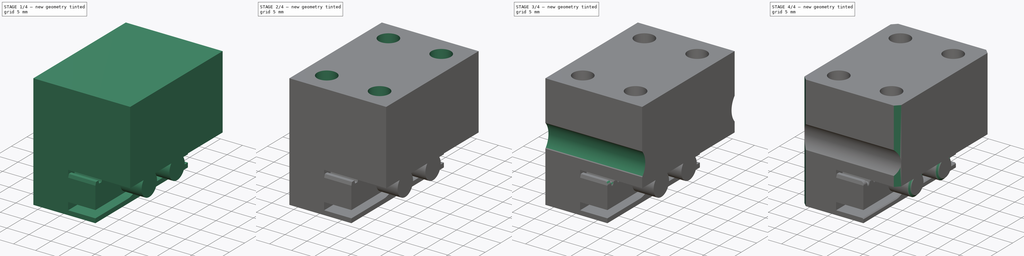
[diagram: build sequence overview — one tinted view per stage of 4, left to right]
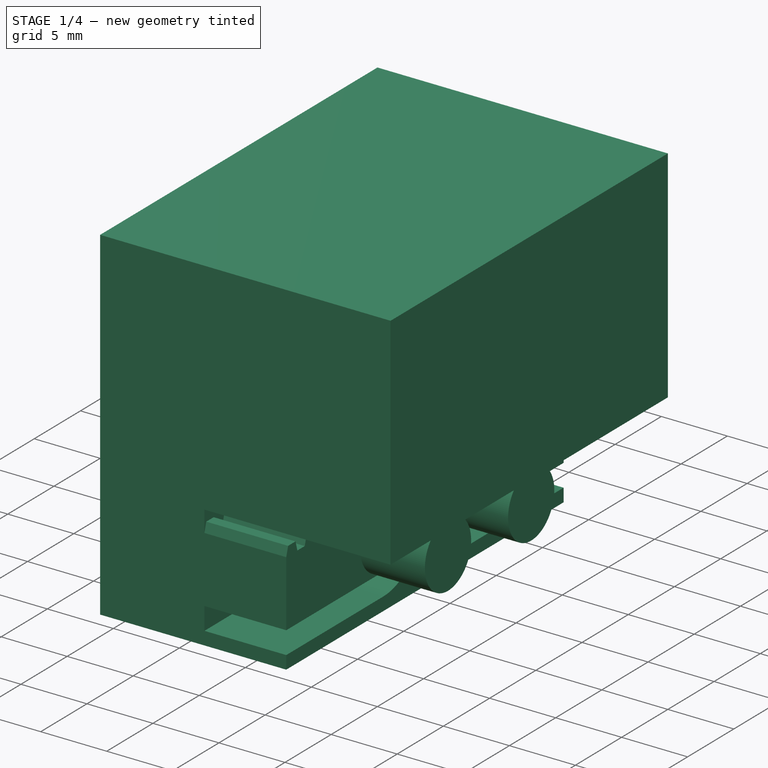
[diagram: stage 1 of 4 — iso view after this stage's code; geometry added in this stage tinted green]
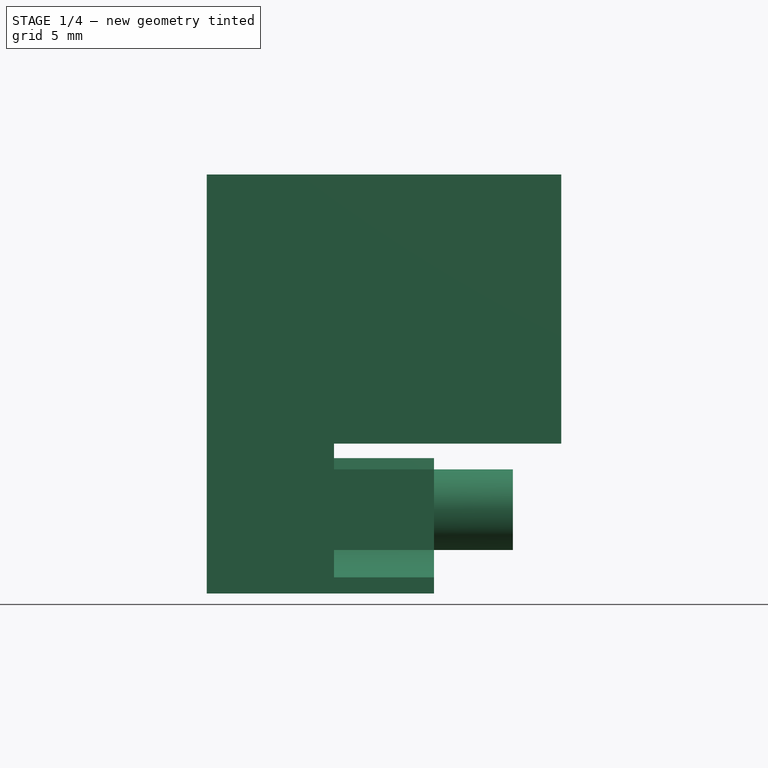
[diagram: stage 1 of 4 — front view after this stage's code; geometry added in this stage tinted green]
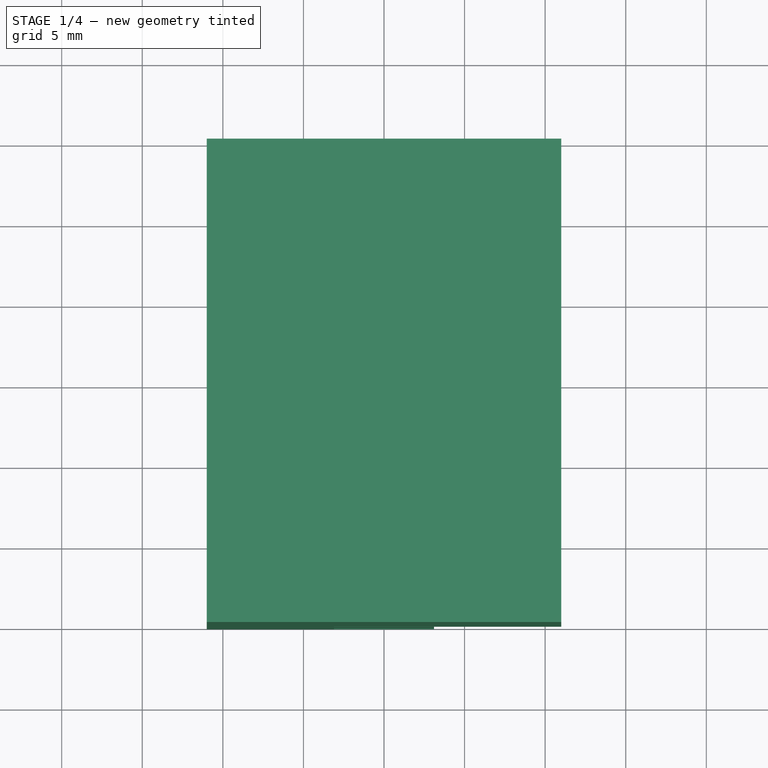
[diagram: stage 1 of 4 — top view after this stage's code; geometry added in this stage tinted green]
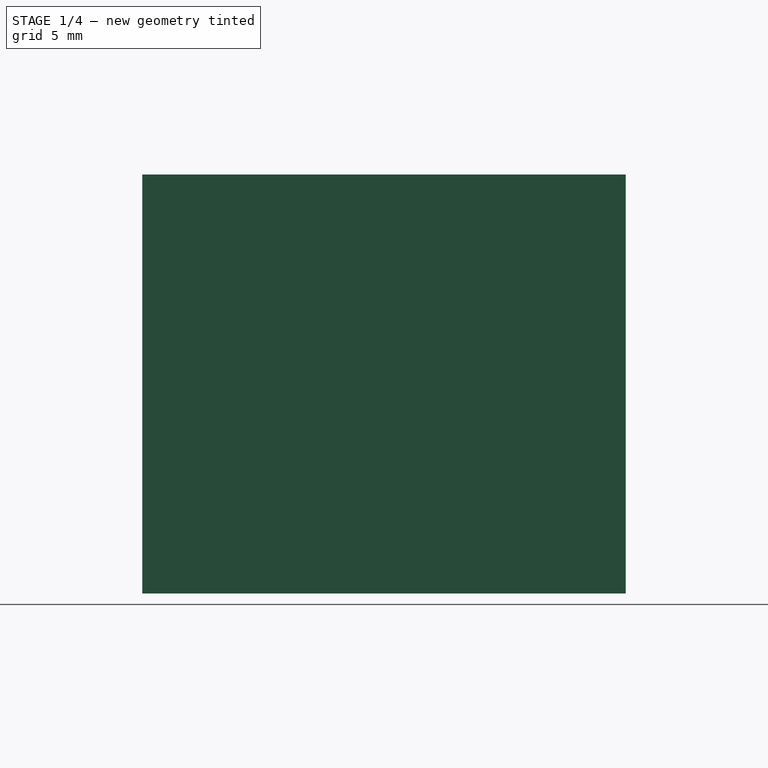
[diagram: stage 1 of 4 — right view after this stage's code; geometry added in this stage tinted green]
FCSTD DOCUMENT  (FreeCAD 0.19R24276 (Git))
Label: _Y_Belt-Clamp17mm
License: CreativeCommons Attribution-NonCommercial-ShareAlike
LicenseURL: http://creativecommons.org/licenses/by-nc-sa/4.0/
objects: Sketcher::SketchObject×7, PartDesign::Pocket×5, PartDesign::Chamfer×3, PartDesign::Pad×2, PartDesign::Fillet×1, PartDesign::Body×1
note: 30 computed .brp shape members not serialized (recipe doc carries the construction recipe); baked Part::Feature solids carry a one-line shape summary decoded from their .brp

FEATURE [Sketcher::SketchObject] Sketch
  FullyConstrained = false
  MapMode = 5
  Placement = pos=(0,0,0) rot=(1,0,0;1.5708rad)
  Support = -> [XZ_Plane]
  sketch-geometry (7):
    g0: LineSegment StartX=-11 StartY=20.8 StartZ=0 EndX=11 EndY=20.8 EndZ=0
    g1: LineSegment StartX=11 StartY=20.8 StartZ=0 EndX=11 EndY=4.1 EndZ=0
    g2: LineSegment StartX=11 StartY=4.1 StartZ=0 EndX=3.1 EndY=4.1 EndZ=0
    g3: LineSegment StartX=3.1 StartY=4.1 StartZ=0 EndX=3.1 EndY=-5.2 EndZ=0
    g4: LineSegment StartX=3.1 StartY=-5.2 StartZ=0 EndX=-11 EndY=-5.2 EndZ=0
    g5: LineSegment StartX=-11 StartY=-5.2 StartZ=0 EndX=-11 EndY=20.8 EndZ=0
    g6: LineSegment StartX=3.1 StartY=4.1 StartZ=0 EndX=-3.1 EndY=4.1 EndZ=0
  constraints (19):
    c: Coincident(g0,g1)
    c: Vertical(g1)
    c: Coincident(g1,g2)
    c: Horizontal(g2)
    c: Coincident(g2,g3)
    c: Coincident(g3,g4)
    c: Horizontal(g4)
    c: Coincident(g4,g5)
    c: Coincident(g5,g0)
    c: Vertical(g5)
    c: Vertical(g3)
    c: Symmetric(g0,g0,g-2)
    c: DistanceX(g0,g0) = 22
    c: Coincident(g6,g2)
    c: Symmetric(g2,g6,g-2)
    c: DistanceX(g6,g6) = 6.2
    c: DistanceY(g3,g-1) = 5.2  'under_hight'
    c: DistanceY(g-1,g0) = 20.8  'base_hight'
    c: DistanceY(g-1,g1) = 4.1  'upper_hight'
FEATURE [PartDesign::Pad] Pad  label="BaseBody"
  AllowMultiFace = false
  Direction = (1,1,1)
  Length = 30
  Length2 = 100
  Midplane = true
  Placement = pos=(0,0,0) rot=(1,0,0;1.5708rad)
  Profile = -> Sketch
  Refine = true
  Type = 0
FEATURE [Sketcher::SketchObject] Sketch001
  ExternalGeometry = -> [Pad]
  FullyConstrained = true
  MapMode = 5
  Placement = pos=(0,0,0) rot=(0.57735,0.57735,0.57735;2.0944rad)
  Support = -> [YZ_Plane]
  sketch-geometry (73):
    g0: LineSegment StartX=-15 StartY=4.1 StartZ=0 EndX=15 EndY=4.1 EndZ=0
    g1: LineSegment StartX=15 StartY=4.1 StartZ=0 EndX=15 EndY=2.5 EndZ=0
    g2: LineSegment StartX=15 StartY=2.5 StartZ=0 EndX=14.8 EndY=3.2 EndZ=0
    g3: LineSegment StartX=14.8 StartY=3.2 StartZ=0 EndX=14 EndY=3.2 EndZ=0
    g4: LineSegment StartX=14 StartY=3.2 StartZ=0 EndX=13.8 EndY=2.5 EndZ=0
    g5: LineSegment StartX=13.8 StartY=2.5 StartZ=0 EndX=13 EndY=2.5 EndZ=0
    g6: LineSegment StartX=13 StartY=2.5 StartZ=0 EndX=12.8 EndY=3.2 EndZ=0
    g7: LineSegment StartX=12.8 StartY=3.2 StartZ=0 EndX=12 EndY=3.2 EndZ=0
    g8: LineSegment StartX=12 StartY=3.2 StartZ=0 EndX=11.8 EndY=2.5 EndZ=0
    g9: LineSegment StartX=11.8 StartY=2.5 StartZ=0 EndX=11 EndY=2.5 EndZ=0
    g10: LineSegment StartX=11 StartY=2.5 StartZ=0 EndX=10.8 EndY=3.2 EndZ=0
    g11: LineSegment StartX=10.8 StartY=3.2 StartZ=0 EndX=10 EndY=3.2 EndZ=0
    g12: LineSegment StartX=10 StartY=3.2 StartZ=0 EndX=9.8 EndY=2.5 EndZ=0
    g13: LineSegment StartX=9.8 StartY=2.5 StartZ=0 EndX=9 EndY=2.5 EndZ=0
    g14: LineSegment StartX=9 StartY=2.5 StartZ=0 EndX=8.8 EndY=3.2 EndZ=0
    g15: LineSegment StartX=8.8 StartY=3.2 StartZ=0 EndX=8 EndY=3.2 EndZ=0
    g16: LineSegment StartX=8 StartY=3.2 StartZ=0 EndX=7.8 EndY=2.5 EndZ=0
    g17: LineSegment StartX=7.8 StartY=2.5 StartZ=0 EndX=7 EndY=2.5 EndZ=0
    g18: LineSegment StartX=7 StartY=2.5 StartZ=0 EndX=6.8 EndY=3.2 EndZ=0
    g19: LineSegment StartX=6.8 StartY=3.2 StartZ=0 EndX=6 EndY=3.2 EndZ=0
    g20: LineSegment StartX=6 StartY=3.2 StartZ=0 EndX=5.8 EndY=2.5 EndZ=0
    g21: LineSegment StartX=5.8 StartY=2.5 StartZ=0 EndX=4.5 EndY=2.5 EndZ=0
    g22: LineSegment StartX=5.8 StartY=2.5 StartZ=0 EndX=7 EndY=2.5 EndZ=0
    g23: LineSegment StartX=6.8 StartY=3.2 StartZ=0 EndX=8 EndY=3.2 EndZ=0
    g24: LineSegment StartX=8.8 StartY=3.2 StartZ=0 EndX=10 EndY=3.2 EndZ=0
    g25: LineSegment StartX=9 StartY=2.5 StartZ=0 EndX=7.8 EndY=2.5 EndZ=0
    g26: LineSegment StartX=9.8 StartY=2.5 StartZ=0 EndX=11 EndY=2.5 EndZ=0
    g27: LineSegment StartX=10.8 StartY=3.2 StartZ=0 EndX=12 EndY=3.2 EndZ=0
    g28: LineSegment StartX=11.8 StartY=2.5 StartZ=0 EndX=13 EndY=2.5 EndZ=0
    g29: LineSegment StartX=12.8 StartY=3.2 StartZ=0 EndX=14 EndY=3.2 EndZ=0
    g30: LineSegment StartX=13.8 StartY=2.5 StartZ=0 EndX=15 EndY=2.5 EndZ=0
    g31: LineSegment StartX=-15 StartY=4.1 StartZ=0 EndX=-15 EndY=2.5 EndZ=0
    g32: LineSegment StartX=-15 StartY=2.5 StartZ=0 EndX=-14.8 EndY=3.2 EndZ=0
    g33: LineSegment StartX=-14.8 StartY=3.2 StartZ=0 EndX=-14 EndY=3.2 EndZ=0
    g34: LineSegment StartX=-14 StartY=3.2 StartZ=0 EndX=-13.8 EndY=2.5 EndZ=0
    g35: LineSegment StartX=-13.8 StartY=2.5 StartZ=0 EndX=-13 EndY=2.5 EndZ=0
    g36: LineSegment StartX=-13 StartY=2.5 StartZ=0 EndX=-12.8 EndY=3.2 EndZ=0
    g37: LineSegment StartX=-12.8 StartY=3.2 StartZ=0 EndX=-12 EndY=3.2 EndZ=0
    g38: LineSegment StartX=-12 StartY=3.2 StartZ=0 EndX=-11.8 EndY=2.5 EndZ=0
    g39: LineSegment StartX=-11.8 StartY=2.5 StartZ=0 EndX=-11 EndY=2.5 EndZ=0
    g40: LineSegment StartX=-11 StartY=2.5 StartZ=0 EndX=-10.8 EndY=3.2 EndZ=0
    g41: LineSegment StartX=-10.8 StartY=3.2 StartZ=0 EndX=-10 EndY=3.2 EndZ=0
    g42: LineSegment StartX=-10 StartY=3.2 StartZ=0 EndX=-9.8 EndY=2.5 EndZ=0
    g43: LineSegment StartX=-9.8 StartY=2.5 StartZ=0 EndX=-9 EndY=2.5 EndZ=0
    g44: LineSegment StartX=-9 StartY=2.5 StartZ=0 EndX=-8.8 EndY=3.2 EndZ=0
    g45: LineSegment StartX=-8.8 StartY=3.2 StartZ=0 EndX=-8 EndY=3.2 EndZ=0
    g46: LineSegment StartX=-8 StartY=3.2 StartZ=0 EndX=-7.8 EndY=2.5 EndZ=0
    g47: LineSegment StartX=-7.8 StartY=2.5 StartZ=0 EndX=-7 EndY=2.5 EndZ=0
    g48: LineSegment StartX=-7 StartY=2.5 StartZ=0 EndX=-6.8 EndY=3.2 EndZ=0
    g49: LineSegment StartX=-6.8 StartY=3.2 StartZ=0 EndX=-6 EndY=3.2 EndZ=0
    g50: LineSegment StartX=-6 StartY=3.2 StartZ=0 EndX=-5.8 EndY=2.5 EndZ=0
    g51: LineSegment StartX=-5.8 StartY=2.5 StartZ=0 EndX=-4.5 EndY=2.5 EndZ=0
    g52: ArcOfCircle CenterX=-4.5 CenterY=2.8943e-12 CenterZ=0 NormalX=0 NormalY=0 NormalZ=1 AngleXU=0 Radius=2.5 StartAngle=4.71239 EndAngle=7.85398
    g53: ArcOfCircle CenterX=4.5 CenterY=2.8943e-12 CenterZ=0 NormalX=0 NormalY=0 NormalZ=1 AngleXU=0 Radius=2.5 StartAngle=1.5708 EndAngle=4.71239
    g54: LineSegment StartX=4.5 StartY=-2.5 StartZ=0 EndX=15 EndY=-2.5 EndZ=0
    g55: LineSegment StartX=15 StartY=-2.5 StartZ=0 EndX=15 EndY=-4.2 EndZ=0
    g56: LineSegment StartX=-15 StartY=-4.2 StartZ=0 EndX=-15 EndY=-2.5 EndZ=0
    g57: LineSegment StartX=-15 StartY=-2.5 StartZ=0 EndX=-4.5 EndY=-2.5 EndZ=0
    g58: LineSegment StartX=-15 StartY=2.5 StartZ=0 EndX=-13.8 EndY=2.5 EndZ=0
    g59: LineSegment StartX=-14 StartY=3.2 StartZ=0 EndX=-12.8 EndY=3.2 EndZ=0
    g60: LineSegment StartX=-13 StartY=2.5 StartZ=0 EndX=-11.8 EndY=2.5 EndZ=0
    g61: LineSegment StartX=-12 StartY=3.2 StartZ=0 EndX=-10.8 EndY=3.2 EndZ=0
    g62: LineSegment StartX=-10 StartY=3.2 StartZ=0 EndX=-8.8 EndY=3.2 EndZ=0
    g63: LineSegment StartX=-11 StartY=2.5 StartZ=0 EndX=-9.8 EndY=2.5 EndZ=0
    g64: LineSegment StartX=-9 StartY=2.5 StartZ=0 EndX=-7.8 EndY=2.5 EndZ=0
    g65: LineSegment StartX=-8 StartY=3.2 StartZ=0 EndX=-6.8 EndY=3.2 EndZ=0
    g66: LineSegment StartX=-7 StartY=2.5 StartZ=0 EndX=-5.8 EndY=2.5 EndZ=0
    g67: ArcOfCircle CenterX=0 CenterY=2.8943e-12 CenterZ=0 NormalX=0 NormalY=0 NormalZ=1 AngleXU=0 Radius=0.3 StartAngle=9.65e-14 EndAngle=3.14159
    g68: ArcOfCircle CenterX=4.5 CenterY=2.8943e-12 CenterZ=0 NormalX=0 NormalY=0 NormalZ=1 AngleXU=0 Radius=4.2 StartAngle=3.14159 EndAngle=4.71239
    g69: ArcOfCircle CenterX=-4.5 CenterY=2.8943e-12 CenterZ=0 NormalX=0 NormalY=0 NormalZ=1 AngleXU=0 Radius=4.2 StartAngle=4.71239 EndAngle=6.28319
    g70: LineSegment StartX=4.5 StartY=-4.2 StartZ=0 EndX=15 EndY=-4.2 EndZ=0
    g71: LineSegment StartX=-4.5 StartY=-4.2 StartZ=0 EndX=-15 EndY=-4.2 EndZ=0
    g72: LineSegment StartX=-4.5 StartY=2.8943e-12 StartZ=0 EndX=4.5 EndY=2.8943e-12 EndZ=0
  constraints (192):
    c: Coincident(g-5,g0)
    c: Coincident(g0,g-4)
    c: Coincident(g0,g1)
    c: PointOnObject(g1,g-4)
    c: Coincident(g2,g3)
    c: Coincident(g3,g4)
    c: Coincident(g4,g5)
    c: Coincident(g5,g6)
    c: Coincident(g6,g7)
    c: Horizontal(g7)
    c: Coincident(g7,g8)
    c: Coincident(g8,g9)
    c: Coincident(g9,g10)
    c: Coincident(g10,g11)
    c: Coincident(g11,g12)
    c: Coincident(g12,g13)
    c: Coincident(g13,g14)
    c: Coincident(g14,g15)
    c: Coincident(g15,g16)
    c: Coincident(g16,g17)
    c: Coincident(g17,g18)
    c: Coincident(g18,g19)
    c: Horizontal(g19)
    c: Coincident(g19,g20)
    c: Coincident(g20,g21)
    c: Coincident(g22,g20)
    c: Coincident(g22,g17)
    c: Coincident(g23,g18)
    c: Coincident(g23,g15)
    c: Coincident(g24,g14)
    c: Coincident(g24,g11)
    c: Horizontal(g24)
    c: Coincident(g25,g13)
    c: Coincident(g25,g16)
    c: Coincident(g26,g12)
    c: Coincident(g26,g9)
    c: Coincident(g27,g10)
    c: Coincident(g27,g7)
    c: Coincident(g28,g8)
    c: Coincident(g28,g5)
    c: Coincident(g29,g6)
    c: Coincident(g29,g3)
    c: Coincident(g30,g4)
    c: Horizontal(g22)
    c: Horizontal(g23)
    c: Horizontal(g25)
    c: Horizontal(g26)
    c: Horizontal(g27)
    c: Horizontal(g5)
    c: Horizontal(g30)
    c: Horizontal(g21)
    c: Coincident(g0,g31)
    c: PointOnObject(g31,g-5)
    c: Coincident(g32,g33)
    c: Coincident(g33,g34)
    c: Coincident(g34,g35)
    c: Coincident(g35,g36)
    c: Coincident(g36,g37)
    c: Coincident(g37,g38)
    c: Coincident(g38,g39)
    c: Coincident(g39,g40)
    c: Coincident(g40,g41)
    c: Coincident(g41,g42)
    c: Coincident(g42,g43)
    c: Horizontal(g43)
    c: Coincident(g43,g44)
    c: Coincident(g44,g45)
    c: Coincident(g45,g46)
    c: Coincident(g46,g47)
    c: Horizontal(g47)
    c: Coincident(g47,g48)
    c: Coincident(g48,g49)
    c: Coincident(g49,g50)
    c: Coincident(g50,g51)
    c: Tangent(g53,g54) = -1.5708
    c: Coincident(g54,g55)
    c: Vertical(g55)
    c: Vertical(g56)
    c: Coincident(g56,g57)
    c: Coincident(g58,g34)
    c: Horizontal(g58)
    c: Coincident(g59,g33)
    c: Coincident(g59,g36)
    c: Horizontal(g59)
    c: Coincident(g60,g35)
    c: Coincident(g60,g38)
    c: Coincident(g61,g37)
    c: Coincident(g61,g40)
    c: Coincident(g62,g41)
    c: Coincident(g62,g44)
    c: Coincident(g63,g39)
    c: Coincident(g63,g42)
    c: Coincident(g64,g43)
    c: Coincident(g64,g46)
    c: Coincident(g65,g45)
    c: Coincident(g65,g48)
    c: Coincident(g66,g47)
    c: Coincident(g66,g50)
    c: Horizontal(g60)
    c: Horizontal(g61)
    c: Horizontal(g63)
    c: Horizontal(g64)
    c: Horizontal(g65)
    c: Horizontal(g49)
    c: Horizontal(g51)
    c: Equal(g58,g59)
    c: Equal(g59,g60)
    c: Equal(g60,g61)
    c: Equal(g61,g63)
    c: Equal(g63,g62)
    c: Equal(g62,g64)
    c: Equal(g64,g65)
    c: Equal(g65,g66)
    c: Equal(g66,g22)
    c: Equal(g22,g23)
    c: Equal(g23,g25)
    c: Equal(g25,g24)
    c: Equal(g24,g26)
    c: Equal(g26,g27)
    c: Equal(g27,g28)
    c: Equal(g28,g29)
    c: Equal(g29,g30)
    c: Equal(g3,g5)
    c: Equal(g5,g7)
    c: Equal(g7,g9)
    c: Equal(g9,g11)
    c: Equal(g11,g13)
    c: Equal(g13,g15)
    c: Equal(g15,g17)
    c: Equal(g17,g19)
    c: Equal(g19,g49)
    c: Equal(g49,g47)
    c: Equal(g47,g45)
    c: Equal(g45,g43)
    c: Equal(g43,g41)
    c: Equal(g41,g39)
    c: Equal(g39,g37)
    c: Equal(g37,g35)
    c: Equal(g35,g33)
    c: Equal(g32,g34)
    c: Equal(g34,g36)
    c: Equal(g36,g38)
    c: Equal(g38,g40)
    c: Equal(g40,g42)
    c: Equal(g42,g44)
    c: Equal(g44,g46)
    c: Equal(g46,g48)
    c: Equal(g48,g50)
    c: Equal(g50,g20)
    c: Equal(g20,g18)
    c: Equal(g18,g16)
    c: Equal(g16,g14)
    c: Equal(g14,g12)
    c: Equal(g12,g10)
    c: Equal(g10,g8)
    c: Equal(g8,g6)
    c: Equal(g6,g4)
    c: Equal(g4,g2)
    c: DistanceX(g5,g5) = 0.8
    c: Coincident(g2,g30)
    c: DistanceY(g2,g2) = 0.7
    c: DistanceX(g29,g29) = 1.2
    c: Coincident(g2,g1)
    c: Coincident(g32,g31)
    c: Coincident(g58,g31)
    c: Tangent(g53,g21) = -1.5708
    c: Horizontal(g54)
    c: Tangent(g52,g51) = 1.5708
    c: Tangent(g57,g52) = -1.5708
    c: Horizontal(g57)
    c: Equal(g52,g53)
    c: Symmetric(g52,g53,g-2)
    c: DistanceX(g52,g53) = 9
    c: Radius(g53) = 2.5
    c: DistanceY(g1,g1) = 1.6
    c: PointOnObject(g67,g-2)
    c: Tangent(g69,g67) = 1.5708
    c: Tangent(g68,g67) = 1.5708
    c: Coincident(g69,g52)
    c: Coincident(g68,g53)
    c: Coincident(g70,g55)
    c: Coincident(g71,g56)
    c: Tangent(g70,g68) = -1.5708
    c: Tangent(g71,g69) = 1.5708
    c: Horizontal(g70)
    c: PointOnObject(g54,g-4)
    c: PointOnObject(g56,g-5)
    c: Equal(g55,g56)
    c: DistanceY(g55,g55) = 1.7
    c: Coincident(g72,g52)
    c: Coincident(g72,g53)
    c: PointOnObject(g67,g72)
FEATURE [Sketcher::SketchObject] Sketch002
  ExternalGeometry = -> [Sketch001]
  FullyConstrained = true
  MapMode = 5
  Placement = pos=(0,0,0) rot=(0.57735,0.57735,0.57735;2.0944rad)
  Support = -> [YZ_Plane]
  sketch-geometry (2):
    g0: Circle CenterX=-4.5 CenterY=2.8866e-12 CenterZ=0 NormalX=0 NormalY=0 NormalZ=1 AngleXU=0 Radius=2.5
    g1: Circle CenterX=4.5 CenterY=2.8857e-12 CenterZ=0 NormalX=0 NormalY=0 NormalZ=1 AngleXU=0 Radius=2.5
  constraints (4):
    c: Equal(g-4,g1)
    c: Equal(g1,g0)
    c: Coincident(g1,g-4)
    c: Coincident(g0,g-3)
FEATURE [Sketcher::SketchObject] Sketch003
  AttachmentOffset = pos=(0,0,20.8) rot=(0,0,1;0rad)
  FullyConstrained = false
  MapMode = 5
  Placement = pos=(0,0,20.8) rot=(0,0,1;0rad)
  Support = -> [XY_Plane]
  expr: .AttachmentOffset.Base.z = Sketch.Constraints.base_hight
  sketch-geometry (4):
    g0: Circle CenterX=-6 CenterY=10 CenterZ=0 NormalX=0 NormalY=0 NormalZ=1 AngleXU=0 Radius=2.2
    g1: Circle CenterX=6 CenterY=10 CenterZ=0 NormalX=0 NormalY=0 NormalZ=1 AngleXU=0 Radius=2.2
    g2: Circle CenterX=6 CenterY=-10 CenterZ=0 NormalX=0 NormalY=0 NormalZ=1 AngleXU=0 Radius=2.2
    g3: Circle CenterX=-6 CenterY=-10 CenterZ=0 NormalX=0 NormalY=0 NormalZ=1 AngleXU=0 Radius=2.2
  constraints (9):
    c: Symmetric(g3,g2,g-2)
    c: Symmetric(g0,g1,g-2)
    c: Symmetric(g0,g3,g-1)
    c: DistanceX(g0,g1) = 12
    c: DistanceY(g3,g0) = 20
    c: Radius(g0) = 2.2
    c: Equal(g0,g1)
    c: Equal(g0,g3)
    c: Equal(g0,g2)
FEATURE [Sketcher::SketchObject] Sketch004
  AttachmentOffset = pos=(0,0,-5.2) rot=(0,0,1;0rad)
  ExternalGeometry = -> [Sketch003]
  FullyConstrained = false
  MapMode = 5
  Placement = pos=(0,0,-5.2) rot=(0,0,1;0rad)
  Support = -> [XY_Plane]
  expr: .AttachmentOffset.Base.z = -Sketch.Constraints.under_hight
  sketch-geometry (2):
    g0: Circle CenterX=-6 CenterY=10 CenterZ=0 NormalX=0 NormalY=0 NormalZ=1 AngleXU=0 Radius=3.4
    g1: Circle CenterX=-6 CenterY=-10 CenterZ=0 NormalX=0 NormalY=0 NormalZ=1 AngleXU=0 Radius=3.4
  constraints (4):
    c: Radius(g0) = 3.4
    c: Equal(g0,g1)
    c: Coincident(g-3,g0)
    c: Coincident(g-4,g1)
FEATURE [PartDesign::Pocket] Pocket
  AllowMultiFace = false
  BaseFeature = -> Pad
  Length = 6.2
  Length2 = 100
  Midplane = true
  Placement = pos=(0,0,0) rot=(1,0,0;1.5708rad)
  Profile = -> Sketch001
  Type = 0
FEATURE [PartDesign::Pad] Pad001
  AllowMultiFace = false
  BaseFeature = -> Pocket
  Direction = (1,1,1)
  Length = 8
  Length2 = 100
  Placement = pos=(0,0,0) rot=(1,0,0;1.5708rad)
  Profile = -> Sketch002
  Type = 0
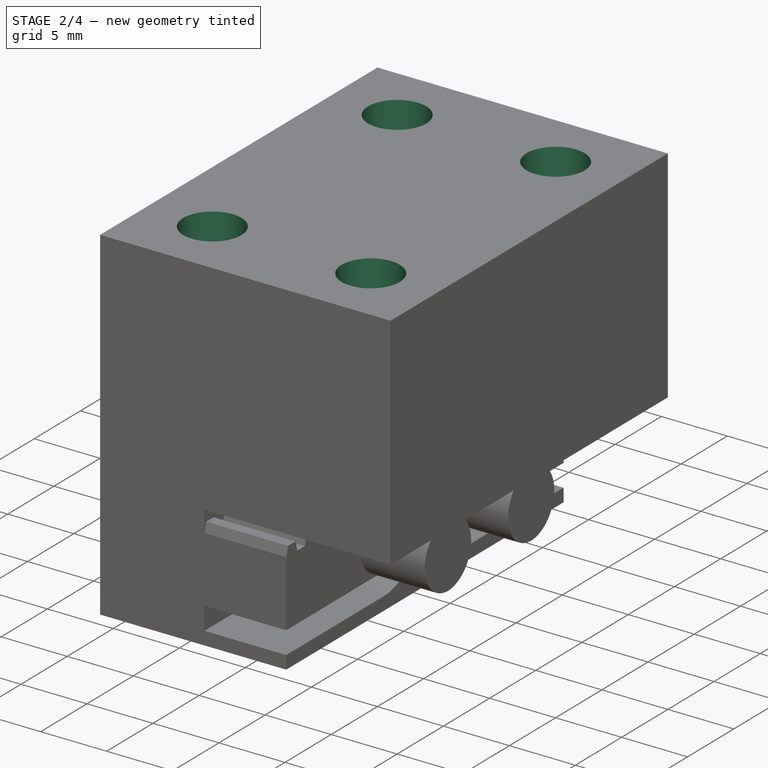
[diagram: stage 2 of 4 — iso view after this stage's code; geometry added in this stage tinted green]
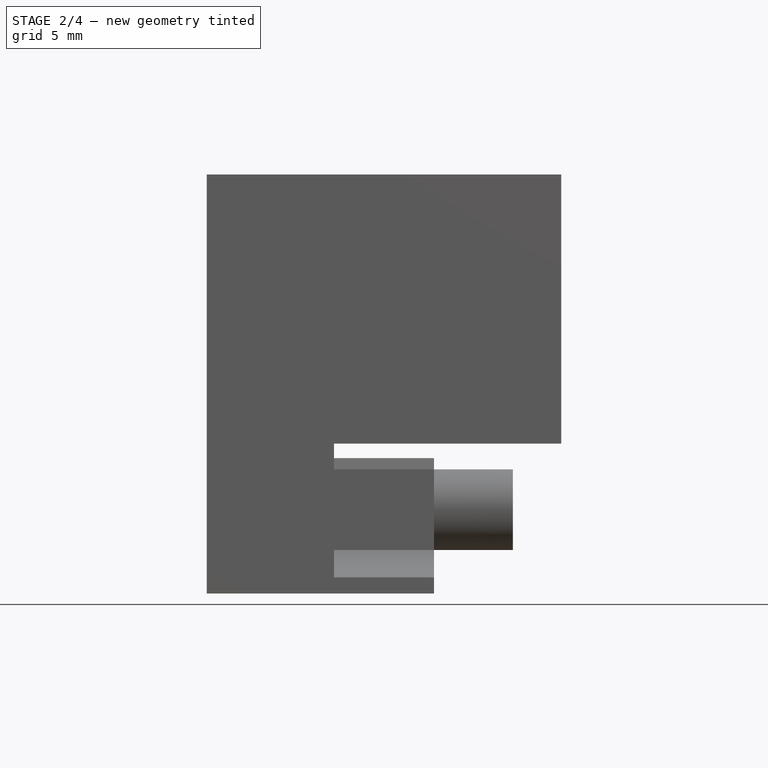
[diagram: stage 2 of 4 — front view after this stage's code; geometry added in this stage tinted green]
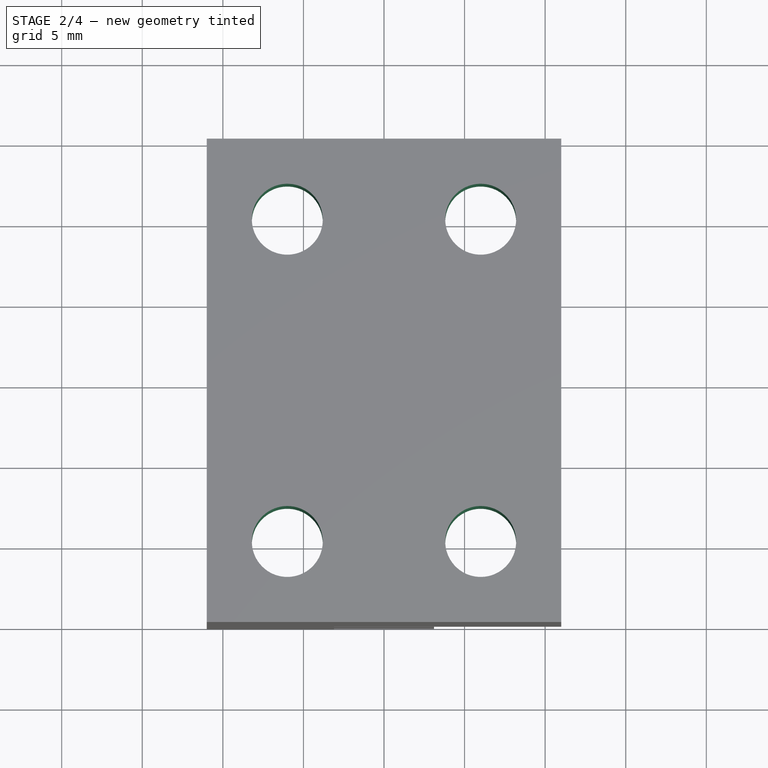
[diagram: stage 2 of 4 — top view after this stage's code; geometry added in this stage tinted green]
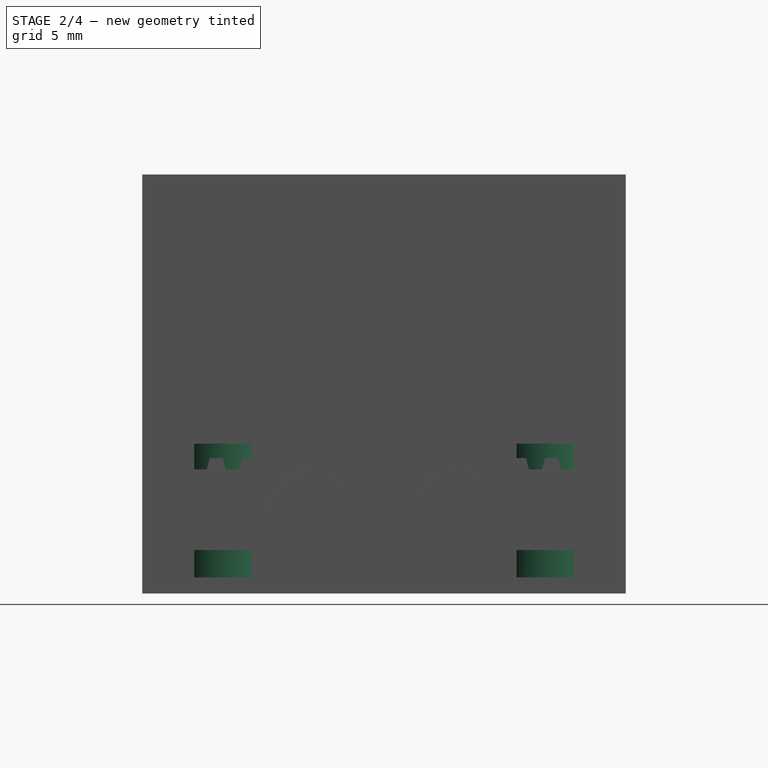
[diagram: stage 2 of 4 — right view after this stage's code; geometry added in this stage tinted green]
FEATURE [PartDesign::Pocket] Pocket001
  AllowMultiFace = false
  BaseFeature = -> Pad001
  Length = 5
  Length2 = 100
  Placement = pos=(0,0,0) rot=(1,0,0;1.5708rad)
  Profile = -> Sketch003
  Type = 1
FEATURE [PartDesign::Pocket] Pocket002  label="countersink1"
  AllowMultiFace = false
  BaseFeature = -> Pocket001
  Length = 16
  Length2 = 100
  Placement = pos=(0,0,0) rot=(1,0,0;1.5708rad)
  Profile = -> Sketch004
  Reversed = true
  Type = 0
  expr: Length = Sketch.Constraints.base_hight + Sketch.Constraints.under_hight - 10mm
FEATURE [Sketcher::SketchObject] Sketch005
  AttachmentOffset = pos=(0,0,4.1) rot=(0,0,1;0rad)
  ExternalGeometry = -> [Sketch003]
  FullyConstrained = false
  MapMode = 5
  Placement = pos=(0,0,4.1) rot=(0,0,1;0rad)
  Support = -> [XY_Plane]
  expr: .AttachmentOffset.Base.z = Sketch.Constraints.upper_hight
  sketch-geometry (2):
    g0: Circle CenterX=6 CenterY=10 CenterZ=0 NormalX=0 NormalY=0 NormalZ=1 AngleXU=0 Radius=3.4
    g1: Circle CenterX=6 CenterY=-10 CenterZ=0 NormalX=0 NormalY=0 NormalZ=1 AngleXU=0 Radius=3.4
  constraints (4):
    c: Coincident(g0,g-3)
    c: Coincident(g1,g-4)
    c: Equal(g1,g0)
    c: Diameter(g0) = 6.8
FEATURE [PartDesign::Pocket] Pocket003  label="countersink2"
  AllowMultiFace = false
  BaseFeature = -> Pocket002
  Length = 6.7
  Length2 = 100
  Placement = pos=(0,0,0) rot=(1,0,0;1.5708rad)
  Profile = -> Sketch005
  Reversed = true
  Type = 0
  expr: Length = Sketch.Constraints.base_hight - Sketch.Constraints.upper_hight - 10mm
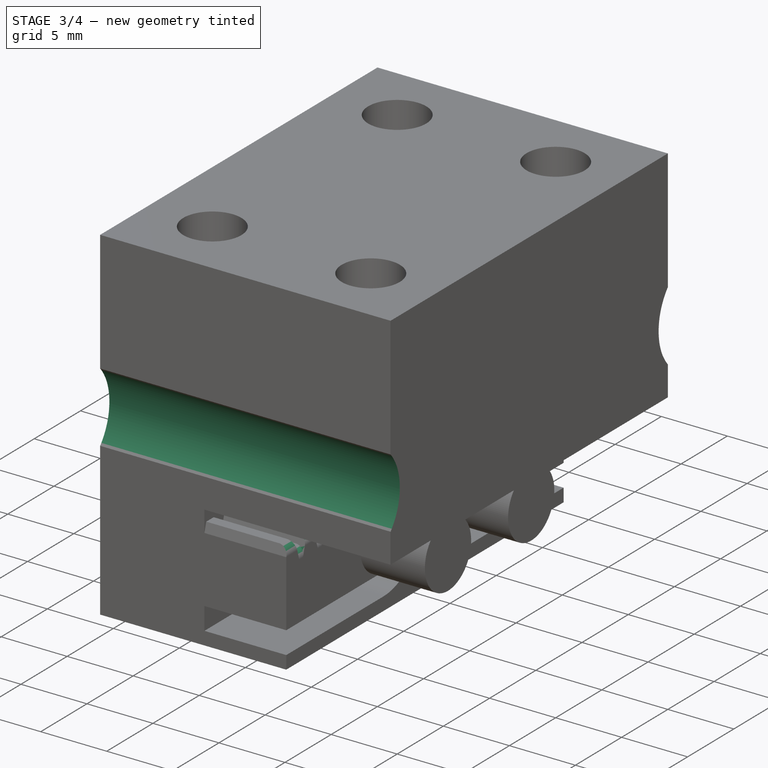
[diagram: stage 3 of 4 — iso view after this stage's code; geometry added in this stage tinted green]
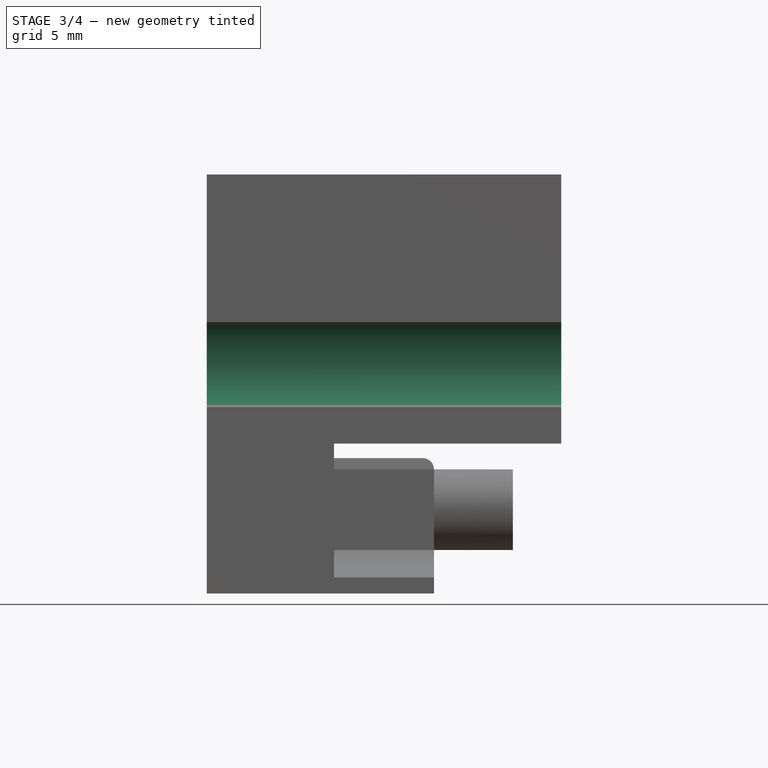
[diagram: stage 3 of 4 — front view after this stage's code; geometry added in this stage tinted green]
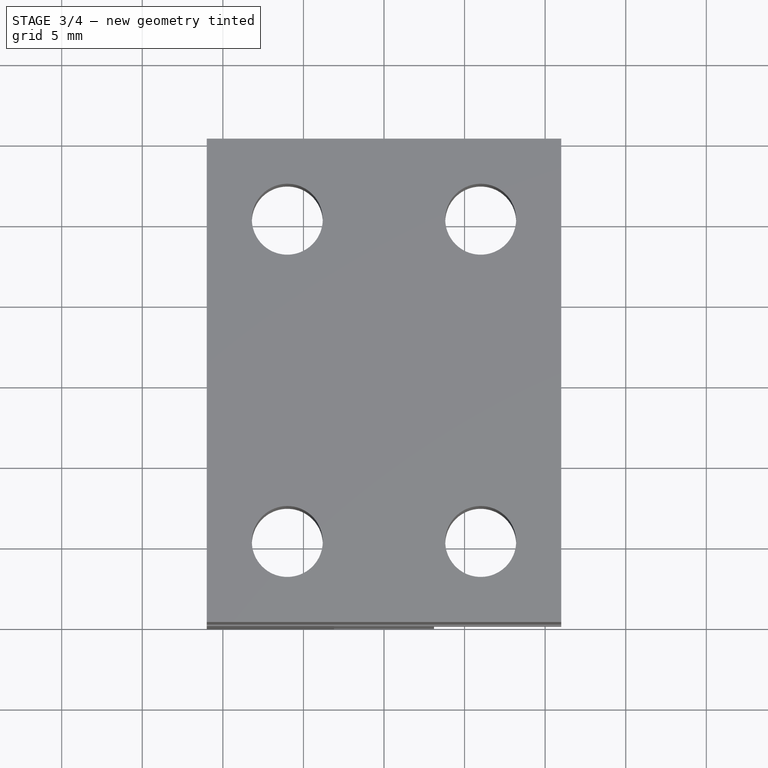
[diagram: stage 3 of 4 — top view after this stage's code; geometry added in this stage tinted green]
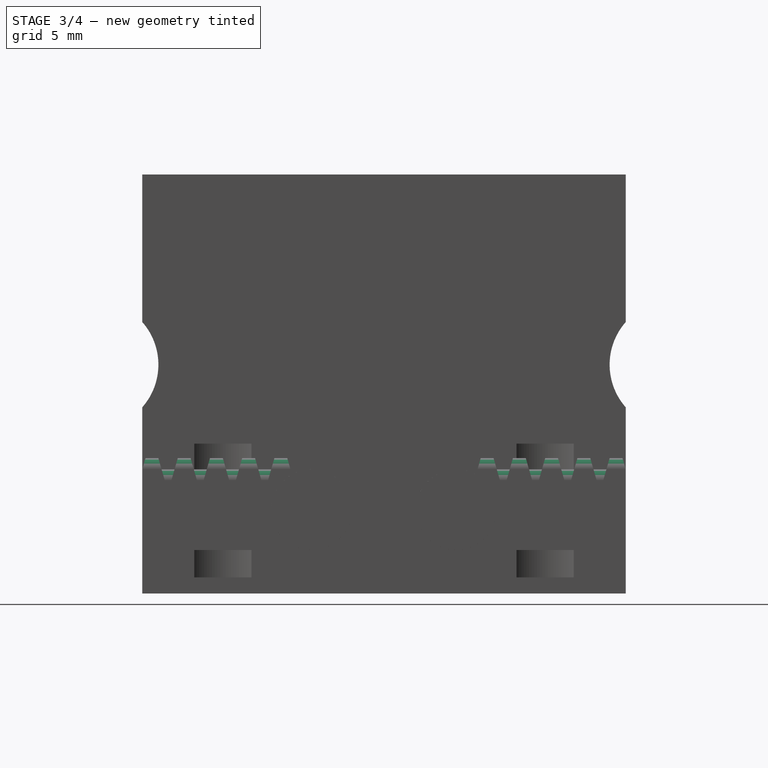
[diagram: stage 3 of 4 — right view after this stage's code; geometry added in this stage tinted green]
FEATURE [Sketcher::SketchObject] Sketch006
  FullyConstrained = true
  MapMode = 5
  Placement = pos=(0,0,0) rot=(0.57735,0.57735,0.57735;2.0944rad)
  Support = -> [YZ_Plane]
  sketch-geometry (12):
    g0: ArcOfCircle CenterX=18 CenterY=9 CenterZ=0 NormalX=0 NormalY=0 NormalZ=1 AngleXU=0 Radius=4 StartAngle=2.24593 EndAngle=4.03726
    g1: ArcOfCircle CenterX=-18 CenterY=9 CenterZ=0 NormalX=0 NormalY=0 NormalZ=1 AngleXU=0 Radius=4 StartAngle=5.38752 EndAngle=7.17885
    g2: LineSegment StartX=15.5 StartY=12.1225 StartZ=0 EndX=15.5 EndY=22 EndZ=0
    g3: LineSegment StartX=15.5 StartY=22 StartZ=0 EndX=-15.5 EndY=22 EndZ=0
    g4: LineSegment StartX=-15.5 StartY=22 StartZ=0 EndX=-15.5 EndY=12.1225 EndZ=0
    g5: LineSegment StartX=-15.5 StartY=5.8775 StartZ=0 EndX=-15.5 EndY=4 EndZ=0
    g6: LineSegment StartX=-15.5 StartY=4 StartZ=0 EndX=-17 EndY=4 EndZ=0
    g7: LineSegment StartX=-17 StartY=4 StartZ=0 EndX=-17 EndY=24 EndZ=0
    g8: LineSegment StartX=-17 StartY=24 StartZ=0 EndX=17 EndY=24 EndZ=0
    g9: LineSegment StartX=17 StartY=24 StartZ=0 EndX=17 EndY=4 EndZ=0
    g10: LineSegment StartX=17 StartY=4 StartZ=0 EndX=15.5 EndY=4 EndZ=0
    g11: LineSegment StartX=15.5 StartY=4 StartZ=0 EndX=15.5 EndY=5.8775 EndZ=0
  constraints (36):
    c: Symmetric(g1,g0,g-2)
    c: Coincident(g0,g2)
    c: Vertical(g2)
    c: Coincident(g2,g3)
    c: Coincident(g3,g4)
    c: Coincident(g4,g1)
    c: Vertical(g4)
    c: Coincident(g1,g5)
    c: Vertical(g5)
    c: Coincident(g5,g6)
    c: Horizontal(g6)
    c: Coincident(g6,g7)
    c: Vertical(g7)
    c: Coincident(g7,g8)
    c: Horizontal(g8)
    c: Coincident(g8,g9)
    c: Vertical(g9)
    c: Coincident(g9,g10)
    c: Horizontal(g10)
    c: Coincident(g10,g11)
    c: Coincident(g11,g0)
    c: Vertical(g11)
    c: DistanceY(g-1,g0) = 9
    c: Vertical(g1,g1)
    c: Vertical(g0,g0)
    c: Equal(g0,g1)
    c: Radius(g0) = 4
    c: DistanceX(g3,g3) = 31
    c: DistanceX(g1,g0) = 36
    c: Symmetric(g3,g2,g-2)
    c: Equal(g10,g6)
    c: Equal(g9,g7)
    c: DistanceX(g8,g8) = 34
    c: DistanceY(g2,g8) = 2
    c: DistanceY(g-1,g7) = 24
    c: DistanceY(g7,g7) = 20
FEATURE [PartDesign::Pocket] Pocket004
  BaseFeature = -> Pocket003
  Length = 5
  Length2 = 100
  Midplane = true
  Placement = pos=(0,0,0) rot=(1,0,0;1.5708rad)
  Profile = -> Sketch006
  Refine = true
  Type = 1
FEATURE [PartDesign::Fillet] Fillet
  Base = -> Pocket004 [Edge123,Edge125,Edge127,Edge129,Edge131,Edge133,Edge135,Edge137,Edge139,Edge81,Edge83,Edge85,Edge87,Edge89,Edge91,Edge93,Edge95,Edge97]
  BaseFeature = -> Pocket004
  Placement = pos=(0,0,0) rot=(1,0,0;1.5708rad)
  Radius = 0.69
  Refine = true
  SupportTransform = false
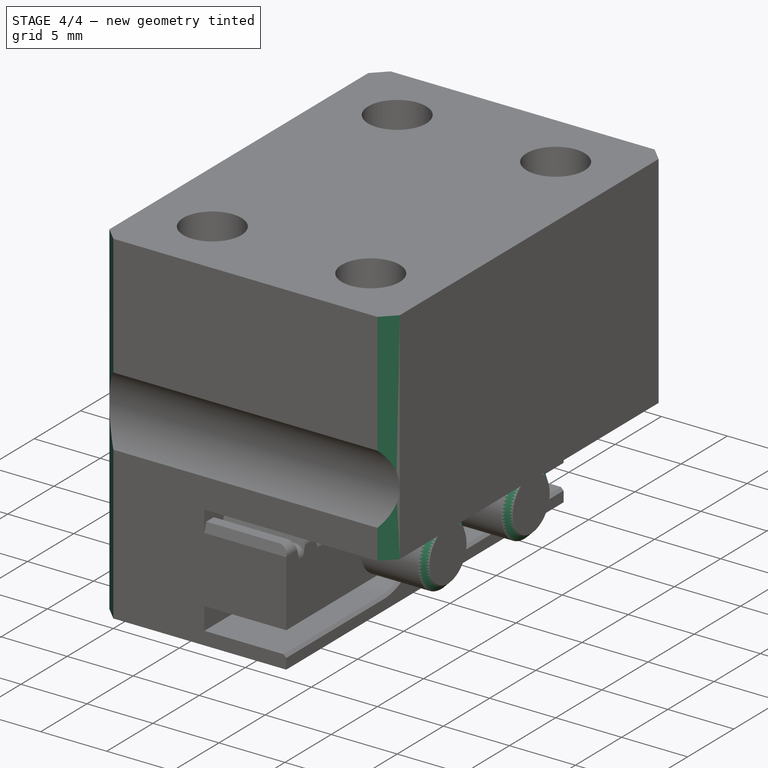
[diagram: stage 4 of 4 — iso view after this stage's code; geometry added in this stage tinted green]
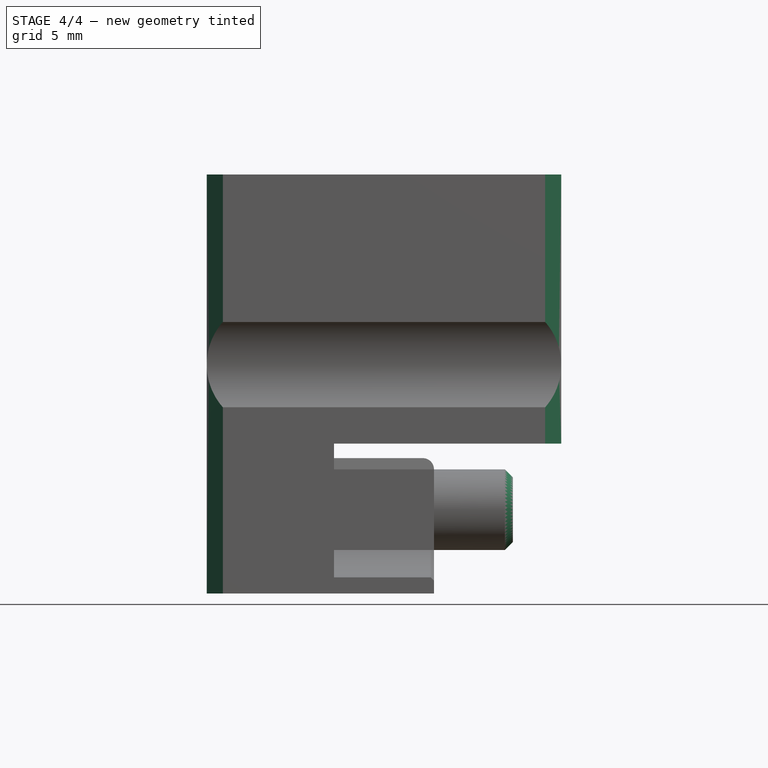
[diagram: stage 4 of 4 — front view after this stage's code; geometry added in this stage tinted green]
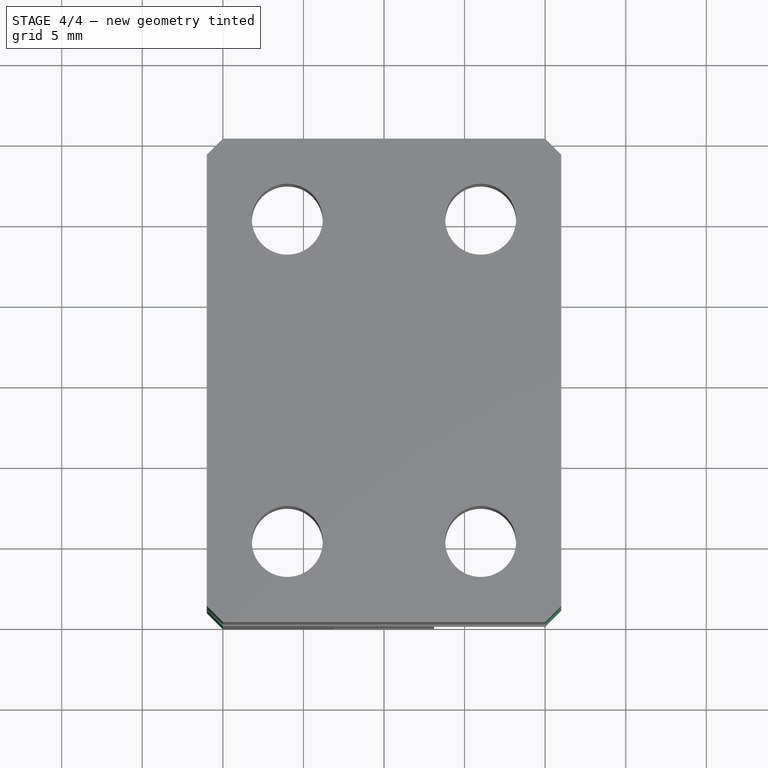
[diagram: stage 4 of 4 — top view after this stage's code; geometry added in this stage tinted green]
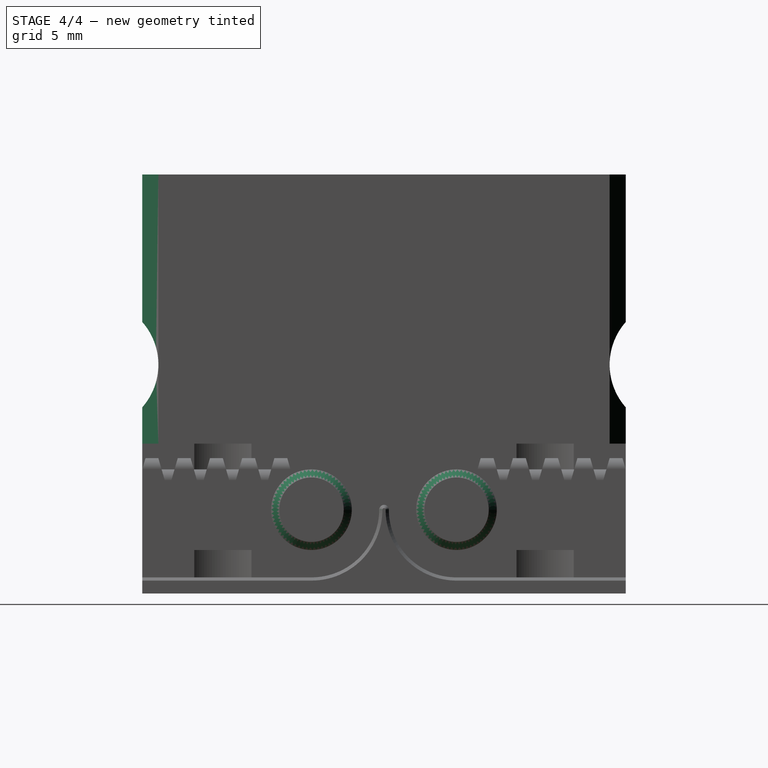
[diagram: stage 4 of 4 — right view after this stage's code; geometry added in this stage tinted green]
FEATURE [PartDesign::Chamfer] Chamfer
  Angle = 45
  Base = -> Fillet [Edge154,Edge155,Edge156,Edge157,Edge158]
  BaseFeature = -> Fillet
  ChamferType = 0
  FlipDirection = false
  Placement = pos=(0,0,0) rot=(1,0,0;1.5708rad)
  Refine = true
  Size = 0.2
  Size2 = 1
  SupportTransform = false
FEATURE [PartDesign::Chamfer] Chamfer001
  Angle = 45
  Base = -> Chamfer [Edge94,Edge95,Edge96,Edge92,Edge91,Edge93,Edge25,Edge26,Edge315,Edge186]
  BaseFeature = -> Chamfer
  ChamferType = 0
  FlipDirection = false
  Placement = pos=(0,0,0) rot=(1,0,0;1.5708rad)
  Refine = true
  Size = 0.5
  Size2 = 1
  SupportTransform = false
FEATURE [PartDesign::Chamfer] Chamfer002
  Angle = 45
  Base = -> Chamfer001 [Edge29,Edge18,Edge22,Edge33]
  BaseFeature = -> Chamfer001
  ChamferType = 0
  FlipDirection = false
  Placement = pos=(0,0,0) rot=(1,0,0;1.5708rad)
  Refine = true
  Size = 1
  Size2 = 1
  SupportTransform = false
FEATURE [PartDesign::Body] Body  label="_Y_Belt-Clamp17mm"
  Group = -> [Sketch,Pad,Sketch001,Sketch002,Sketch003,Sketch004,Pocket,Pad001,Pocket001,Pocket002,Sketch005,Pocket003,Sketch006,Pocket004,Fillet,Chamfer,Chamfer001,Chamfer002]
  Origin = -> Origin
  Tip = -> Chamfer002
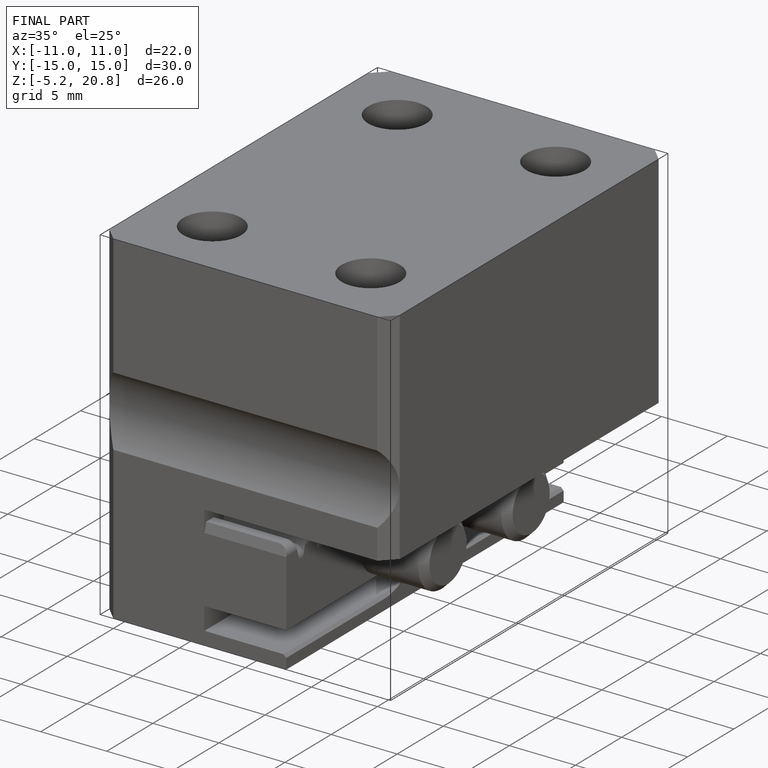
[diagram: finished part — iso view with bounding-box wireframe]
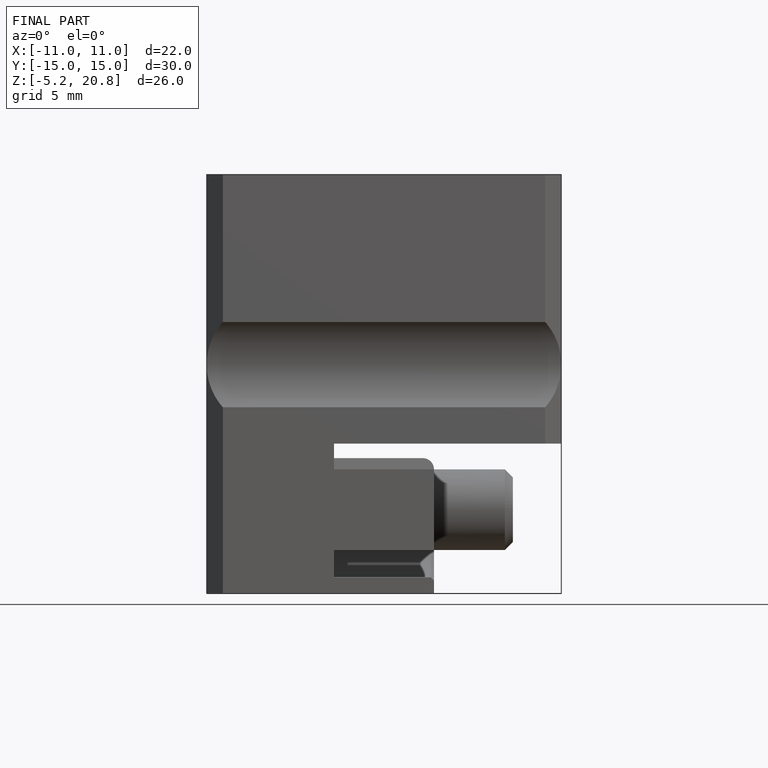
[diagram: finished part — front view with bounding-box wireframe]
